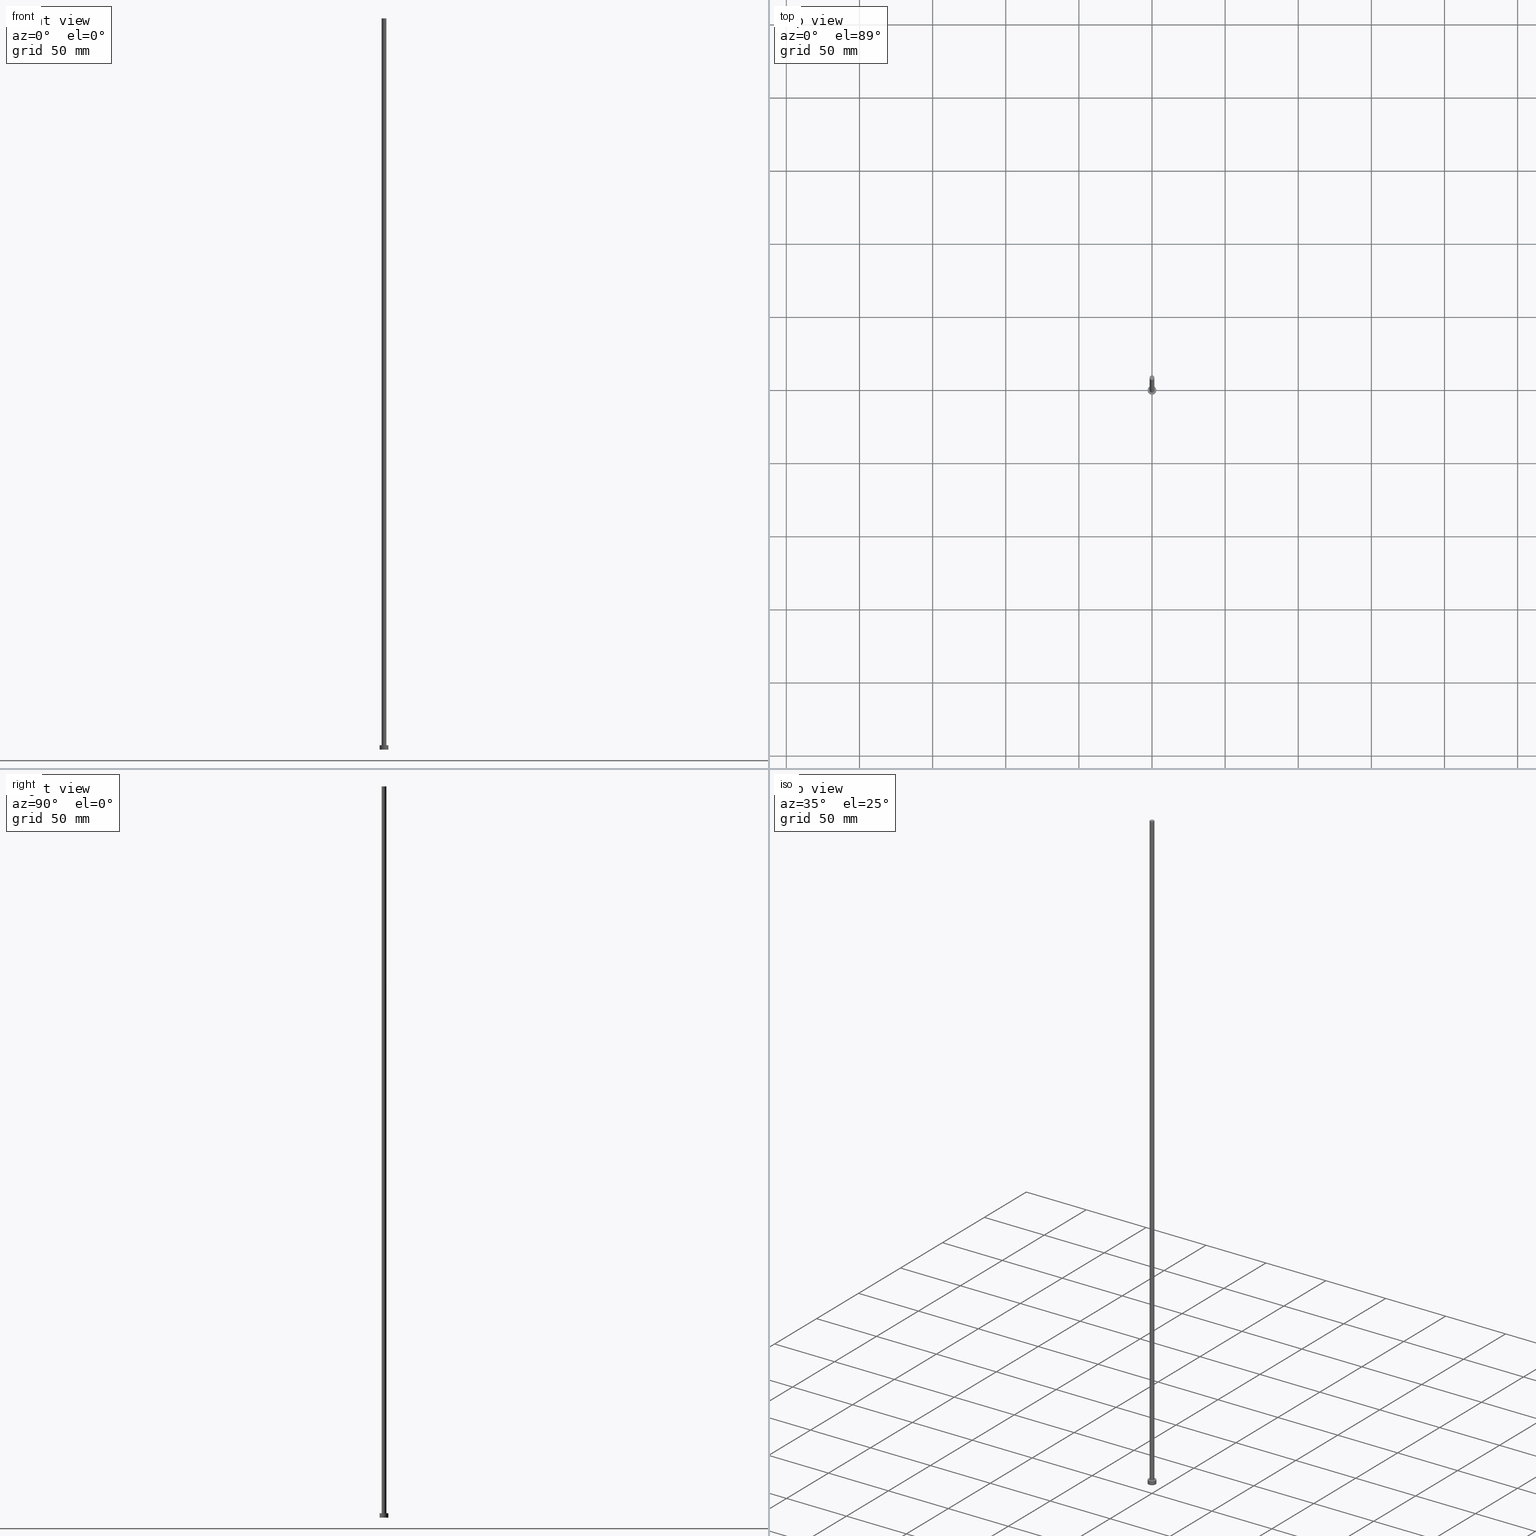
[diagram: canonical four-view strip — front | top / right | iso, engineering-drawing reading convention]
A machine part, canonical four-view strip (front | top / right | iso — engineering-drawing reading convention). The complete STEP part file that produces these views, byte-faithful:
ISO-10303-21;
HEADER;
FILE_DESCRIPTION (( 'STEP AP203' ),
    '1' );
FILE_NAME ('142f.STEP',
    '2023-02-13T16:52:03',
    ( '' ),
    ( '' ),
    'SwSTEP 2.0',
    'SolidWorks 2019',
    '' );
FILE_SCHEMA (( 'CONFIG_CONTROL_DESIGN' ));
ENDSEC;

DATA;
#1 = ORIENTED_EDGE ( 'NONE', *, *, #108, .F. ) ;
#2 = ORIENTED_EDGE ( 'NONE', *, *, #55, .T. ) ;
#3 = VERTEX_POINT ( 'NONE', #236 ) ;
#4 = CYLINDRICAL_SURFACE ( 'NONE', #116, 1.600000000000000089 ) ;
#5 = SHAPE_DEFINITION_REPRESENTATION ( #97, #9 ) ;
#6 = CYLINDRICAL_SURFACE ( 'NONE', #54, 3.000000000000000444 ) ;
#7 = DIRECTION ( 'NONE',  ( 1.000000000000000000, 0.000000000000000000, 0.000000000000000000 ) ) ;
#8 = VERTEX_POINT ( 'NONE', #141 ) ;
#9 = ADVANCED_BREP_SHAPE_REPRESENTATION ( '142f', ( #49, #68 ), #205 ) ;
#10 = ORGANIZATION ( 'NEUR�EN�', 'NEUR�EN�', '' ) ;
#11 = CARTESIAN_POINT ( 'NONE',  ( 0.000000000000000000, 0.000000000000000000, 0.000000000000000000 ) ) ;
#12 = ADVANCED_FACE ( 'NONE', ( #95 ), #218, .F. ) ;
#13 = DIRECTION ( 'NONE',  ( -0.000000000000000000, -0.000000000000000000, -1.000000000000000000 ) ) ;
#14 = AXIS2_PLACEMENT_3D ( 'NONE', #171, #153, #225 ) ;
#15 = PERSON_AND_ORGANIZATION ( #104, #10 ) ;
#16 = CARTESIAN_POINT ( 'NONE',  ( 1.600000000000000089, 1.959434878635764737E-16, 500.0000000000000000 ) ) ;
#17 = VERTEX_POINT ( 'NONE', #149 ) ;
#18 = FACE_OUTER_BOUND ( 'NONE', #44, .T. ) ;
#19 = DIRECTION ( 'NONE',  ( 0.000000000000000000, 0.000000000000000000, 1.000000000000000000 ) ) ;
#20 = PERSON_AND_ORGANIZATION_ROLE ( 'classification_officer' ) ;
#21 = CARTESIAN_POINT ( 'NONE',  ( 0.000000000000000000, 0.000000000000000000, 500.0000000000000000 ) ) ;
#22 = CIRCLE ( 'NONE', #197, 1.600000000000000089 ) ;
#23 = EDGE_LOOP ( 'NONE', ( #101, #179 ) ) ;
#24 = FACE_OUTER_BOUND ( 'NONE', #92, .T. ) ;
#25 = ORIENTED_EDGE ( 'NONE', *, *, #108, .T. ) ;
#26 = EDGE_CURVE ( 'NONE', #212, #118, #144, .T. ) ;
#27 = ORIENTED_EDGE ( 'NONE', *, *, #48, .F. ) ;
#28 = CIRCLE ( 'NONE', #80, 1.600000000000000089 ) ;
#29 = ORIENTED_EDGE ( 'NONE', *, *, #196, .T. ) ;
#30 = LINE ( 'NONE', #185, #155 ) ;
#31 = DIRECTION ( 'NONE',  ( 1.000000000000000000, 0.000000000000000000, 0.000000000000000000 ) ) ;
#32 = LOCAL_TIME ( 17, 52, 3.000000000000000000, #137 ) ;
#33 = DIRECTION ( 'NONE',  ( 0.000000000000000000, 0.000000000000000000, 1.000000000000000000 ) ) ;
#34 = COORDINATED_UNIVERSAL_TIME_OFFSET ( 1, 0, .AHEAD. ) ;
#35 = DATE_TIME_ROLE ( 'creation_date' ) ;
#36 = ADVANCED_FACE ( 'NONE', ( #64 ), #206, .T. ) ;
#37 = DIRECTION ( 'NONE',  ( 0.000000000000000000, 0.000000000000000000, 1.000000000000000000 ) ) ;
#38 = CC_DESIGN_APPROVAL ( #202, ( #226 ) ) ;
#39 = CARTESIAN_POINT ( 'NONE',  ( -1.600000000000000089, 0.000000000000000000, 500.0000000000000000 ) ) ;
#40 = EDGE_CURVE ( 'NONE', #3, #8, #90, .T. ) ;
#41 = EDGE_CURVE ( 'NONE', #212, #8, #30, .T. ) ;
#42 = APPROVAL_PERSON_ORGANIZATION ( #200, #128, #180 ) ;
#43 = DIRECTION ( 'NONE',  ( 1.000000000000000000, 0.000000000000000000, 0.000000000000000000 ) ) ;
#44 = EDGE_LOOP ( 'NONE', ( #25, #162 ) ) ;
#45 = APPROVAL_DATE_TIME ( #113, #128 ) ;
#46 = ORIENTED_EDGE ( 'NONE', *, *, #26, .T. ) ;
#47 = CARTESIAN_POINT ( 'NONE',  ( 0.000000000000000000, 0.000000000000000000, 0.000000000000000000 ) ) ;
#48 = EDGE_CURVE ( 'NONE', #198, #183, #28, .T. ) ;
#49 = MANIFOLD_SOLID_BREP ( 'P�idat vysunut�m3', #107 ) ;
#50 = PERSON_AND_ORGANIZATION_ROLE ( 'creator' ) ;
#51 = CARTESIAN_POINT ( 'NONE',  ( 0.000000000000000000, 0.000000000000000000, 500.0000000000000000 ) ) ;
#52 = CC_DESIGN_PERSON_AND_ORGANIZATION_ASSIGNMENT ( #67, #20, ( #238 ) ) ;
#53 = ORIENTED_EDGE ( 'NONE', *, *, #26, .F. ) ;
#54 = AXIS2_PLACEMENT_3D ( 'NONE', #237, #73, #60 ) ;
#55 = EDGE_CURVE ( 'NONE', #183, #129, #160, .T. ) ;
#56 = ORIENTED_EDGE ( 'NONE', *, *, #240, .T. ) ;
#57 = CARTESIAN_POINT ( 'NONE',  ( 1.600000000000000089, 1.959434878635764737E-16, 500.0000000000000000 ) ) ;
#58 = CARTESIAN_POINT ( 'NONE',  ( -3.000000000000000444, 0.000000000000000000, 3.000000000000000000 ) ) ;
#59 = DIRECTION ( 'NONE',  ( 0.000000000000000000, 0.000000000000000000, 1.000000000000000000 ) ) ;
#60 = DIRECTION ( 'NONE',  ( -1.000000000000000000, 0.000000000000000000, 0.000000000000000000 ) ) ;
#61 = ORIENTED_EDGE ( 'NONE', *, *, #196, .F. ) ;
#62 = CARTESIAN_POINT ( 'NONE',  ( 0.000000000000000000, 0.000000000000000000, 3.000000000000000000 ) ) ;
#63 = APPROVAL_ROLE ( '' ) ;
#64 = FACE_OUTER_BOUND ( 'NONE', #178, .T. ) ;
#65 = APPROVAL_STATUS ( 'not_yet_approved' ) ;
#66 = DATE_AND_TIME ( #170, #76 ) ;
#67 = PERSON_AND_ORGANIZATION ( #104, #10 ) ;
#68 = AXIS2_PLACEMENT_3D ( 'NONE', #47, #186, #7 ) ;
#69 = DIRECTION ( 'NONE',  ( 0.000000000000000000, 0.000000000000000000, 1.000000000000000000 ) ) ;
#70 = EDGE_CURVE ( 'NONE', #118, #3, #192, .T. ) ;
#71 = AXIS2_PLACEMENT_3D ( 'NONE', #21, #69, #228 ) ;
#72 = DATE_AND_TIME ( #89, #182 ) ;
#73 = DIRECTION ( 'NONE',  ( -0.000000000000000000, -0.000000000000000000, -1.000000000000000000 ) ) ;
#74 = DIRECTION ( 'NONE',  ( 0.000000000000000000, 0.000000000000000000, 1.000000000000000000 ) ) ;
#75 = DIRECTION ( 'NONE',  ( 1.000000000000000000, 0.000000000000000000, 0.000000000000000000 ) ) ;
#76 = LOCAL_TIME ( 17, 52, 3.000000000000000000, #169 ) ;
#77 = EDGE_CURVE ( 'NONE', #198, #17, #123, .T. ) ;
#78 = DIRECTION ( 'NONE',  ( -0.000000000000000000, -0.000000000000000000, -1.000000000000000000 ) ) ;
#79 = DIRECTION ( 'NONE',  ( 1.000000000000000000, 0.000000000000000000, -0.000000000000000000 ) ) ;
#80 = AXIS2_PLACEMENT_3D ( 'NONE', #102, #74, #31 ) ;
#81 = APPROVAL_ROLE ( '' ) ;
#82 = FACE_OUTER_BOUND ( 'NONE', #161, .T. ) ;
#83 = CALENDAR_DATE ( 2023, 13, 2 ) ;
#84 = PERSON_AND_ORGANIZATION_ROLE ( 'creator' ) ;
#85 = DIRECTION ( 'NONE',  ( -0.000000000000000000, -0.000000000000000000, -1.000000000000000000 ) ) ;
#86 = DIRECTION ( 'NONE',  ( -1.000000000000000000, 0.000000000000000000, 0.000000000000000000 ) ) ;
#87 = APPROVAL_PERSON_ORGANIZATION ( #15, #136, #63 ) ;
#88 = CC_DESIGN_APPROVAL ( #128, ( #238 ) ) ;
#89 = CALENDAR_DATE ( 2023, 13, 2 ) ;
#90 = CIRCLE ( 'NONE', #131, 3.000000000000000444 ) ;
#91 = CC_DESIGN_PERSON_AND_ORGANIZATION_ASSIGNMENT ( #210, #172, ( #226 ) ) ;
#92 = EDGE_LOOP ( 'NONE', ( #46, #29 ) ) ;
#93 = EDGE_LOOP ( 'NONE', ( #220, #1, #2, #143 ) ) ;
#94 = ORIENTED_EDGE ( 'NONE', *, *, #119, .T. ) ;
#95 = FACE_OUTER_BOUND ( 'NONE', #242, .T. ) ;
#96 = DATE_TIME_ROLE ( 'classification_date' ) ;
#97 = PRODUCT_DEFINITION_SHAPE ( 'NONE', 'NONE',  #187 ) ;
#98 = CIRCLE ( 'NONE', #188, 1.600000000000000089 ) ;
#99 = ADVANCED_FACE ( 'NONE', ( #82 ), #249, .T. ) ;
#100 = ORIENTED_EDGE ( 'NONE', *, *, #40, .F. ) ;
#101 = ORIENTED_EDGE ( 'NONE', *, *, #243, .F. ) ;
#102 = CARTESIAN_POINT ( 'NONE',  ( 0.000000000000000000, 0.000000000000000000, 500.0000000000000000 ) ) ;
#103 = DIRECTION ( 'NONE',  ( 1.000000000000000000, 0.000000000000000000, 0.000000000000000000 ) ) ;
#104 = PERSON ( 'NEUR�EN�', 'NEUR�EN�', 'NEUR�EN�', ('NEUR�EN�'), ('NEUR�EN�'), ('NEUR�EN�') ) ;
#105 = ORIENTED_EDGE ( 'NONE', *, *, #41, .T. ) ;
#106 = PERSON_AND_ORGANIZATION ( #104, #10 ) ;
#107 = CLOSED_SHELL ( 'NONE', ( #99, #252, #36, #248, #12, #168, #174 ) ) ;
#108 = EDGE_CURVE ( 'NONE', #183, #198, #22, .T. ) ;
#109 = APPROVAL_DATE_TIME ( #66, #202 ) ;
#110 = ORIENTED_EDGE ( 'NONE', *, *, #77, .T. ) ;
#111 = CARTESIAN_POINT ( 'NONE',  ( 0.000000000000000000, 0.000000000000000000, 3.000000000000000000 ) ) ;
#112 = AXIS2_PLACEMENT_3D ( 'NONE', #135, #59, #195 ) ;
#113 = DATE_AND_TIME ( #134, #32 ) ;
#114 = APPROVAL_STATUS ( 'not_yet_approved' ) ;
#115 = ORIENTED_EDGE ( 'NONE', *, *, #41, .F. ) ;
#116 = AXIS2_PLACEMENT_3D ( 'NONE', #230, #78, #86 ) ;
#117 =( NAMED_UNIT ( * ) SI_UNIT ( $, .STERADIAN. ) SOLID_ANGLE_UNIT ( ) );
#118 = VERTEX_POINT ( 'NONE', #250 ) ;
#119 = EDGE_CURVE ( 'NONE', #8, #3, #223, .T. ) ;
#120 = DIRECTION ( 'NONE',  ( -0.000000000000000000, -0.000000000000000000, -1.000000000000000000 ) ) ;
#121 = DIRECTION ( 'NONE',  ( -0.000000000000000000, -0.000000000000000000, -1.000000000000000000 ) ) ;
#122 = CARTESIAN_POINT ( 'NONE',  ( 0.000000000000000000, 0.000000000000000000, 3.000000000000000000 ) ) ;
#123 = LINE ( 'NONE', #16, #245 ) ;
#124 = AXIS2_PLACEMENT_3D ( 'NONE', #62, #121, #167 ) ;
#125 = PERSON_AND_ORGANIZATION ( #104, #10 ) ;
#126 = LOCAL_TIME ( 17, 52, 3.000000000000000000, #34 ) ;
#127 = ORIENTED_EDGE ( 'NONE', *, *, #119, .F. ) ;
#128 = APPROVAL ( #114, 'NEUR�EN�' ) ;
#129 = VERTEX_POINT ( 'NONE', #132 ) ;
#130 = CARTESIAN_POINT ( 'NONE',  ( 0.000000000000000000, 0.000000000000000000, 3.000000000000000000 ) ) ;
#131 = AXIS2_PLACEMENT_3D ( 'NONE', #203, #247, #75 ) ;
#132 = CARTESIAN_POINT ( 'NONE',  ( -1.600000000000000089, 0.000000000000000000, 3.000000000000000000 ) ) ;
#133 = CC_DESIGN_DATE_AND_TIME_ASSIGNMENT ( #72, #96, ( #238 ) ) ;
#134 = CALENDAR_DATE ( 2023, 13, 2 ) ;
#135 = CARTESIAN_POINT ( 'NONE',  ( 0.000000000000000000, 0.000000000000000000, 0.000000000000000000 ) ) ;
#136 = APPROVAL ( #65, 'NEUR�EN�' ) ;
#137 = COORDINATED_UNIVERSAL_TIME_OFFSET ( 1, 0, .AHEAD. ) ;
#138 = FACE_OUTER_BOUND ( 'NONE', #93, .T. ) ;
#139 = APPROVAL_PERSON_ORGANIZATION ( #106, #202, #81 ) ;
#140 = PLANE ( 'NONE',  #175 ) ;
#141 = CARTESIAN_POINT ( 'NONE',  ( -3.000000000000000444, 0.000000000000000000, 0.000000000000000000 ) ) ;
#142 = ORIENTED_EDGE ( 'NONE', *, *, #70, .T. ) ;
#143 = ORIENTED_EDGE ( 'NONE', *, *, #243, .T. ) ;
#144 = CIRCLE ( 'NONE', #176, 3.000000000000000444 ) ;
#145 = PERSON_AND_ORGANIZATION_ROLE ( 'design_owner' ) ;
#146 = AXIS2_PLACEMENT_3D ( 'NONE', #130, #19, #43 ) ;
#147 = MECHANICAL_CONTEXT ( 'NONE', #244, 'mechanical' ) ;
#148 = APPLICATION_PROTOCOL_DEFINITION ( 'international standard', 'config_control_design', 1994, #255 ) ;
#149 = CARTESIAN_POINT ( 'NONE',  ( 1.600000000000000089, 1.959434878635764737E-16, 3.000000000000000000 ) ) ;
#150 = COORDINATED_UNIVERSAL_TIME_OFFSET ( 1, 0, .AHEAD. ) ;
#151 = DIRECTION ( 'NONE',  ( 0.000000000000000000, 0.000000000000000000, 1.000000000000000000 ) ) ;
#152 = AXIS2_PLACEMENT_3D ( 'NONE', #111, #177, #234 ) ;
#153 = DIRECTION ( 'NONE',  ( -0.000000000000000000, -0.000000000000000000, -1.000000000000000000 ) ) ;
#154 = PERSON_AND_ORGANIZATION ( #104, #10 ) ;
#155 = VECTOR ( 'NONE', #120, 1000.000000000000000 ) ;
#156 = PLANE ( 'NONE',  #71 ) ;
#157 = DIRECTION ( 'NONE',  ( -0.000000000000000000, -0.000000000000000000, -1.000000000000000000 ) ) ;
#158 = DESIGN_CONTEXT ( 'detailed design', #255, 'design' ) ;
#159 = CC_DESIGN_PERSON_AND_ORGANIZATION_ASSIGNMENT ( #154, #84, ( #226 ) ) ;
#160 = LINE ( 'NONE', #241, #231 ) ;
#161 = EDGE_LOOP ( 'NONE', ( #27, #110, #56, #217 ) ) ;
#162 = ORIENTED_EDGE ( 'NONE', *, *, #48, .T. ) ;
#163 = LOCAL_TIME ( 17, 52, 3.000000000000000000, #150 ) ;
#164 = FACE_BOUND ( 'NONE', #23, .T. ) ;
#165 = CIRCLE ( 'NONE', #146, 1.600000000000000089 ) ;
#166 = PERSON_AND_ORGANIZATION ( #104, #10 ) ;
#167 = DIRECTION ( 'NONE',  ( -1.000000000000000000, 0.000000000000000000, 0.000000000000000000 ) ) ;
#168 = ADVANCED_FACE ( 'NONE', ( #138 ), #4, .T. ) ;
#169 = COORDINATED_UNIVERSAL_TIME_OFFSET ( 1, 0, .AHEAD. ) ;
#170 = CALENDAR_DATE ( 2023, 13, 2 ) ;
#171 = CARTESIAN_POINT ( 'NONE',  ( 0.000000000000000000, 0.000000000000000000, 500.0000000000000000 ) ) ;
#172 = PERSON_AND_ORGANIZATION_ROLE ( 'design_supplier' ) ;
#173 = DIRECTION ( 'NONE',  ( 1.000000000000000000, 0.000000000000000000, 0.000000000000000000 ) ) ;
#174 = ADVANCED_FACE ( 'NONE', ( #18 ), #156, .T. ) ;
#175 = AXIS2_PLACEMENT_3D ( 'NONE', #199, #239, #181 ) ;
#176 = AXIS2_PLACEMENT_3D ( 'NONE', #122, #33, #103 ) ;
#177 = DIRECTION ( 'NONE',  ( 0.000000000000000000, 0.000000000000000000, 1.000000000000000000 ) ) ;
#178 = EDGE_LOOP ( 'NONE', ( #184, #53, #105, #94 ) ) ;
#179 = ORIENTED_EDGE ( 'NONE', *, *, #240, .F. ) ;
#180 = APPROVAL_ROLE ( '' ) ;
#181 = DIRECTION ( 'NONE',  ( 1.000000000000000000, 0.000000000000000000, -0.000000000000000000 ) ) ;
#182 = LOCAL_TIME ( 17, 52, 3.000000000000000000, #216 ) ;
#183 = VERTEX_POINT ( 'NONE', #39 ) ;
#184 = ORIENTED_EDGE ( 'NONE', *, *, #70, .F. ) ;
#185 = CARTESIAN_POINT ( 'NONE',  ( -3.000000000000000444, 0.000000000000000000, 3.000000000000000000 ) ) ;
#186 = DIRECTION ( 'NONE',  ( 0.000000000000000000, 0.000000000000000000, 1.000000000000000000 ) ) ;
#187 = PRODUCT_DEFINITION ( 'NEZN�M�', '', #226, #158 ) ;
#188 = AXIS2_PLACEMENT_3D ( 'NONE', #253, #37, #227 ) ;
#189 = ORIENTED_EDGE ( 'NONE', *, *, #40, .T. ) ;
#190 = APPROVAL_STATUS ( 'not_yet_approved' ) ;
#191 = DATE_AND_TIME ( #208, #163 ) ;
#192 = LINE ( 'NONE', #246, #214 ) ;
#193 = CC_DESIGN_APPROVAL ( #136, ( #187 ) ) ;
#194 = EDGE_LOOP ( 'NONE', ( #61, #142, #189, #115 ) ) ;
#195 = DIRECTION ( 'NONE',  ( 1.000000000000000000, 0.000000000000000000, 0.000000000000000000 ) ) ;
#196 = EDGE_CURVE ( 'NONE', #118, #212, #221, .T. ) ;
#197 = AXIS2_PLACEMENT_3D ( 'NONE', #51, #209, #173 ) ;
#198 = VERTEX_POINT ( 'NONE', #57 ) ;
#199 = CARTESIAN_POINT ( 'NONE',  ( 0.000000000000000000, 0.000000000000000000, 3.000000000000000000 ) ) ;
#200 = PERSON_AND_ORGANIZATION ( #104, #10 ) ;
#201 = APPLICATION_PROTOCOL_DEFINITION ( 'international standard', 'config_control_design', 1994, #244 ) ;
#202 = APPROVAL ( #190, 'NEUR�EN�' ) ;
#203 = CARTESIAN_POINT ( 'NONE',  ( 0.000000000000000000, 0.000000000000000000, 0.000000000000000000 ) ) ;
#204 = CC_DESIGN_PERSON_AND_ORGANIZATION_ASSIGNMENT ( #166, #145, ( #224 ) ) ;
#205 =( GEOMETRIC_REPRESENTATION_CONTEXT ( 3 ) GLOBAL_UNCERTAINTY_ASSIGNED_CONTEXT ( ( #232 ) ) GLOBAL_UNIT_ASSIGNED_CONTEXT ( ( #213, #219, #117 ) ) REPRESENTATION_CONTEXT ( 'NONE', 'WORKASPACE' ) );
#206 = CYLINDRICAL_SURFACE ( 'NONE', #124, 3.000000000000000444 ) ;
#207 = DATE_AND_TIME ( #83, #126 ) ;
#208 = CALENDAR_DATE ( 2023, 13, 2 ) ;
#209 = DIRECTION ( 'NONE',  ( 0.000000000000000000, 0.000000000000000000, 1.000000000000000000 ) ) ;
#210 = PERSON_AND_ORGANIZATION ( #104, #10 ) ;
#211 = CC_DESIGN_PERSON_AND_ORGANIZATION_ASSIGNMENT ( #125, #50, ( #187 ) ) ;
#212 = VERTEX_POINT ( 'NONE', #58 ) ;
#213 =( LENGTH_UNIT ( ) NAMED_UNIT ( * ) SI_UNIT ( .MILLI., .METRE. ) );
#214 = VECTOR ( 'NONE', #13, 1000.000000000000000 ) ;
#215 = CC_DESIGN_SECURITY_CLASSIFICATION ( #238, ( #226 ) ) ;
#216 = COORDINATED_UNIVERSAL_TIME_OFFSET ( 1, 0, .AHEAD. ) ;
#217 = ORIENTED_EDGE ( 'NONE', *, *, #55, .F. ) ;
#218 = PLANE ( 'NONE',  #254 ) ;
#219 =( NAMED_UNIT ( * ) PLANE_ANGLE_UNIT ( ) SI_UNIT ( $, .RADIAN. ) );
#220 = ORIENTED_EDGE ( 'NONE', *, *, #77, .F. ) ;
#221 = CIRCLE ( 'NONE', #152, 3.000000000000000444 ) ;
#222 = APPROVAL_DATE_TIME ( #191, #136 ) ;
#223 = CIRCLE ( 'NONE', #112, 3.000000000000000444 ) ;
#224 = PRODUCT ( '142f', '142f', '', ( #147 ) ) ;
#225 = DIRECTION ( 'NONE',  ( -1.000000000000000000, 0.000000000000000000, 0.000000000000000000 ) ) ;
#226 = PRODUCT_DEFINITION_FORMATION_WITH_SPECIFIED_SOURCE ( 'LIBOVOLN�', '', #224, .NOT_KNOWN. ) ;
#227 = DIRECTION ( 'NONE',  ( 1.000000000000000000, 0.000000000000000000, 0.000000000000000000 ) ) ;
#228 = DIRECTION ( 'NONE',  ( 1.000000000000000000, 0.000000000000000000, -0.000000000000000000 ) ) ;
#229 = PRODUCT_RELATED_PRODUCT_CATEGORY ( 'detail', '', ( #224 ) ) ;
#230 = CARTESIAN_POINT ( 'NONE',  ( 0.000000000000000000, 0.000000000000000000, 500.0000000000000000 ) ) ;
#231 = VECTOR ( 'NONE', #157, 1000.000000000000000 ) ;
#232 = UNCERTAINTY_MEASURE_WITH_UNIT (LENGTH_MEASURE( 1.000000000000000082E-05 ), #213, 'distance_accuracy_value', 'NONE');
#233 = CC_DESIGN_DATE_AND_TIME_ASSIGNMENT ( #207, #35, ( #187 ) ) ;
#234 = DIRECTION ( 'NONE',  ( 1.000000000000000000, 0.000000000000000000, 0.000000000000000000 ) ) ;
#235 = FACE_OUTER_BOUND ( 'NONE', #194, .T. ) ;
#236 = CARTESIAN_POINT ( 'NONE',  ( 3.000000000000000444, 3.673940397442060361E-16, 0.000000000000000000 ) ) ;
#237 = CARTESIAN_POINT ( 'NONE',  ( 0.000000000000000000, 0.000000000000000000, 3.000000000000000000 ) ) ;
#238 = SECURITY_CLASSIFICATION ( '', '', #251 ) ;
#239 = DIRECTION ( 'NONE',  ( 0.000000000000000000, 0.000000000000000000, 1.000000000000000000 ) ) ;
#240 = EDGE_CURVE ( 'NONE', #17, #129, #98, .T. ) ;
#241 = CARTESIAN_POINT ( 'NONE',  ( -1.600000000000000089, 0.000000000000000000, 500.0000000000000000 ) ) ;
#242 = EDGE_LOOP ( 'NONE', ( #127, #100 ) ) ;
#243 = EDGE_CURVE ( 'NONE', #129, #17, #165, .T. ) ;
#244 = APPLICATION_CONTEXT ( 'configuration controlled 3d designs of mechanical parts and assemblies' ) ;
#245 = VECTOR ( 'NONE', #85, 1000.000000000000000 ) ;
#246 = CARTESIAN_POINT ( 'NONE',  ( 3.000000000000000444, 3.673940397442060361E-16, 3.000000000000000000 ) ) ;
#247 = DIRECTION ( 'NONE',  ( 0.000000000000000000, 0.000000000000000000, 1.000000000000000000 ) ) ;
#248 = ADVANCED_FACE ( 'NONE', ( #164, #24 ), #140, .T. ) ;
#249 = CYLINDRICAL_SURFACE ( 'NONE', #14, 1.600000000000000089 ) ;
#250 = CARTESIAN_POINT ( 'NONE',  ( 3.000000000000000444, 3.673940397442060361E-16, 3.000000000000000000 ) ) ;
#251 = SECURITY_CLASSIFICATION_LEVEL ( 'unclassified' ) ;
#252 = ADVANCED_FACE ( 'NONE', ( #235 ), #6, .T. ) ;
#253 = CARTESIAN_POINT ( 'NONE',  ( 0.000000000000000000, 0.000000000000000000, 3.000000000000000000 ) ) ;
#254 = AXIS2_PLACEMENT_3D ( 'NONE', #11, #151, #79 ) ;
#255 = APPLICATION_CONTEXT ( 'configuration controlled 3d designs of mechanical parts and assemblies' ) ;
ENDSEC;
END-ISO-10303-21;
